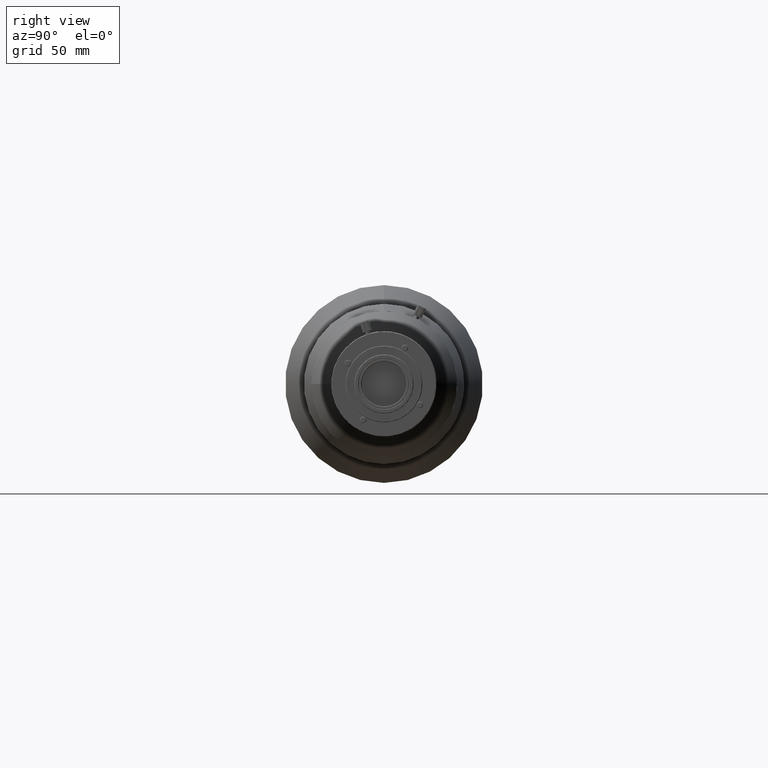
[diagram: clean part render]
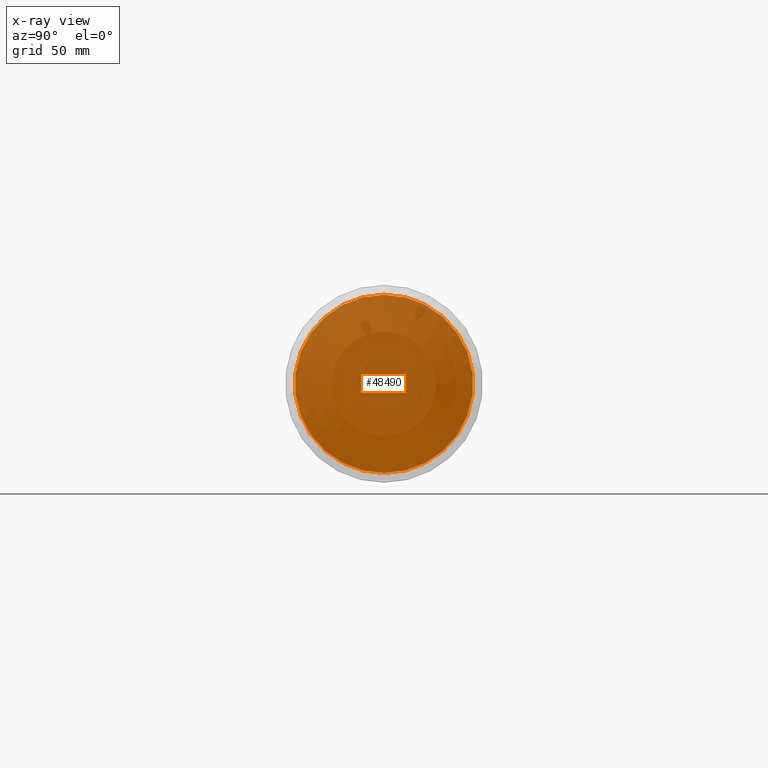
[diagram: x-ray — body ghosted, one internal face saturated and labeled with its STEP entity id]
A machine part, right view, then the same camera in x-ray: the body is ghosted and one INTERNAL B-rep face — a face not visible from any outside direction — is saturated and labeled: STEP entity #48490.
In plain terms, the highlighted planar face has unit normal (1, 0, 0).
Its self-contained STEP definition (entity closure, byte-faithful):
#4613 = DIRECTION ( 'NONE',  ( -1.000000000000000000, -0.000000000000000000, -0.000000000000000000 ) ) ;
#14046 = CARTESIAN_POINT ( 'NONE',  ( -61.49732065252197799, 10.19269740323191975, 154.4499999608852647 ) ) ;
#16663 = AXIS2_PLACEMENT_3D ( 'NONE', #23415, #48390, #36918 ) ;
#20226 = EDGE_CURVE ( 'NONE', #33874, #33874, #27302, .T. ) ;
#23415 = CARTESIAN_POINT ( 'NONE',  ( -61.49732065252214142, 10.19269740323191975, 154.4499999608848668 ) ) ;
#27302 = CIRCLE ( 'NONE', #54794, 38.40000000000065938 ) ;
#28043 = ORIENTED_EDGE ( 'NONE', *, *, #20226, .T. ) ;
#29884 = DIRECTION ( 'NONE',  ( 0.000000000000000000, 0.000000000000000000, 1.000000000000000000 ) ) ;
#33874 = VERTEX_POINT ( 'NONE', #38041 ) ;
#36918 = DIRECTION ( 'NONE',  ( 0.000000000000000000, 0.000000000000000000, -1.000000000000000000 ) ) ;
#38041 = CARTESIAN_POINT ( 'NONE',  ( -61.49732065252197799, 10.19269740323191975, 192.8499999608859241 ) ) ;
#43667 = PLANE ( 'NONE',  #16663 ) ;
#46092 = EDGE_LOOP ( 'NONE', ( #28043 ) ) ;
#48390 = DIRECTION ( 'NONE',  ( 1.000000000000000000, 0.000000000000000000, 0.000000000000000000 ) ) ;
#48490 = ADVANCED_FACE ( 'NONE', ( #52536 ), #43667, .F. ) ;
#52536 = FACE_OUTER_BOUND ( 'NONE', #46092, .T. ) ;
#54794 = AXIS2_PLACEMENT_3D ( 'NONE', #14046, #4613, #29884 ) ;